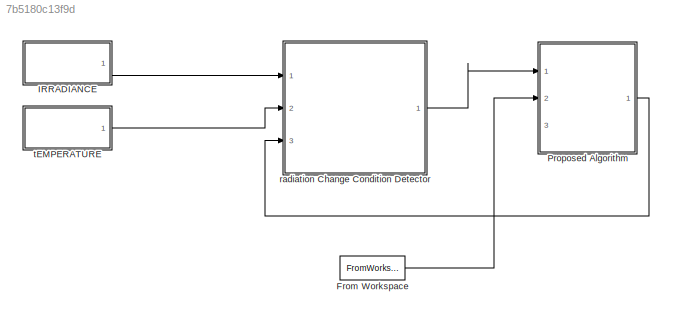
MODEL slx_7b5180c13f9d
KIND model
BLOCK [FromWorkspace] From Workspace
  SampleTime = 0
  VariableName = simin
  ZeroCross = on
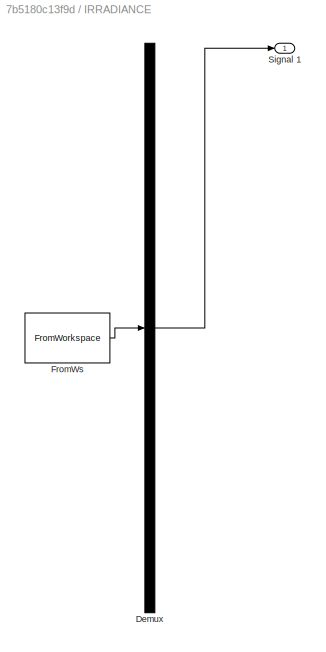
BLOCK [SubSystem] IRRADIANCE
  ClipboardFcn = sigbuilder_block('clipboard');
  CloseFcn = sigbuilder_block('close');
  ContinueFcn = sigbuilder_block('continue');
  CopyFcn = sigbuilder_block('copy');
  DeleteFcn = sigbuilder_block('delete');
  LoadFcn = sigbuilder_block('load');
  MaskHideContents = on
  ModelCloseFcn = sigbuilder_block('modelClose');
  NameChangeFcn = sigbuilder_block('namechange');
  OpenFcn = sigbuilder_block('open',[437.25 183.75 550.5 395.25 ]);
  PauseFcn = sigbuilder_block('pause');
  Ports = [0, 1]
  PreSaveFcn = sigbuilder_block('preSave');
  RequestExecContextInheritance = off
  StartFcn = sigbuilder_block('start');
  StopFcn = sigbuilder_block('stop');
  Tag = STV Subsys
BLOCK [Demux] IRRADIANCE/Demux
  Outputs = 1
  Ports = [1, 1]
  Tag = STV Demux
BLOCK [FromWorkspace] IRRADIANCE/FromWs
  SampleTime = 0
  Tag = STV FromWs
  VariableName = tuvar
  ZeroCross = on
BLOCK [Outport] IRRADIANCE/Signal 1
  IconDisplay = Port number
  Tag = STV Outport
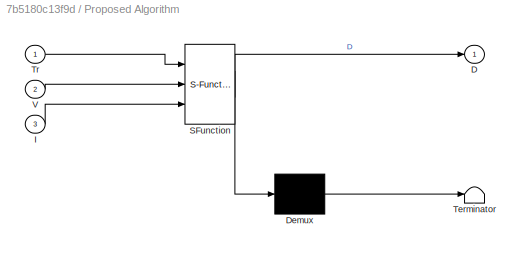
BLOCK [SubSystem] Proposed Algorithm
  ErrorFcn = Stateflow.Translate.translate
  PermitHierarchicalResolution = ExplicitOnly
  Ports = [3, 1]
  RequestExecContextInheritance = off
  SFBlockType = MATLAB Function
  TreatAsAtomicUnit = on
BLOCK [Demux] Proposed Algorithm/ Demux 
  Outputs = 1
  Ports = [1, 1]
BLOCK [S-Function] Proposed Algorithm/ SFunction 
  EnableBusSupport = off
  FunctionName = sf_sfun
  PortCounts = [3 2]
  Ports = [3, 2]
  Tag = Stateflow S-Function Scratch_SIMULATION_01 1
BLOCK [Terminator] Proposed Algorithm/ Terminator 
BLOCK [Outport] Proposed Algorithm/D
  IconDisplay = Port number
BLOCK [Inport] Proposed Algorithm/I
  IconDisplay = Port number
  Port = 3
BLOCK [Inport] Proposed Algorithm/Tr
  IconDisplay = Port number
BLOCK [Inport] Proposed Algorithm/V
  IconDisplay = Port number
  Port = 2
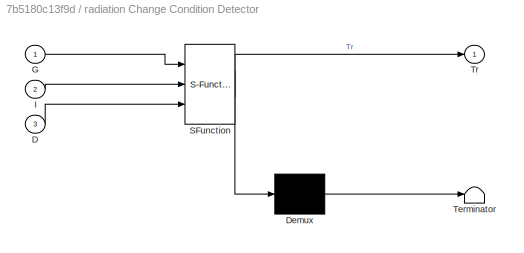
BLOCK [SubSystem] radiation Change Condition Detector
  ErrorFcn = Stateflow.Translate.translate
  PermitHierarchicalResolution = ExplicitOnly
  Ports = [3, 1]
  RequestExecContextInheritance = off
  SFBlockType = MATLAB Function
  TreatAsAtomicUnit = on
BLOCK [Demux] radiation Change Condition Detector/ Demux 
  Outputs = 1
  Ports = [1, 1]
BLOCK [S-Function] radiation Change Condition Detector/ SFunction 
  EnableBusSupport = off
  FunctionName = sf_sfun
  PortCounts = [3 2]
  Ports = [3, 2]
  Tag = Stateflow S-Function Scratch_SIMULATION_01 2
BLOCK [Terminator] radiation Change Condition Detector/ Terminator 
BLOCK [Inport] radiation Change Condition Detector/D
  IconDisplay = Port number
  Port = 3
BLOCK [Inport] radiation Change Condition Detector/G
  IconDisplay = Port number
BLOCK [Inport] radiation Change Condition Detector/I
  IconDisplay = Port number
  Port = 2
BLOCK [Outport] radiation Change Condition Detector/Tr
  IconDisplay = Port number
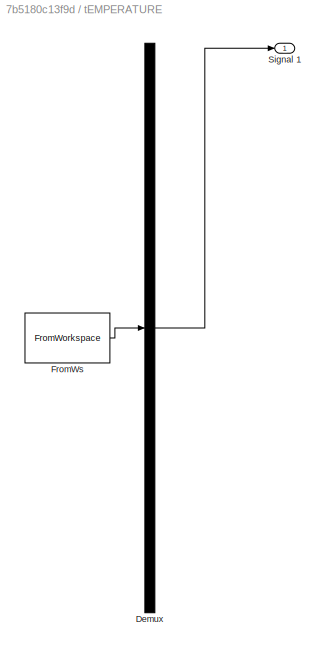
BLOCK [SubSystem] tEMPERATURE
  ClipboardFcn = sigbuilder_block('clipboard');
  CloseFcn = sigbuilder_block('close');
  ContinueFcn = sigbuilder_block('continue');
  CopyFcn = sigbuilder_block('copy');
  DeleteFcn = sigbuilder_block('delete');
  LoadFcn = sigbuilder_block('load');
  MaskHideContents = on
  ModelCloseFcn = sigbuilder_block('modelClose');
  NameChangeFcn = sigbuilder_block('namechange');
  OpenFcn = sigbuilder_block('open',[437.25 183.75 550.5 395.25 ]);
  PauseFcn = sigbuilder_block('pause');
  Ports = [0, 1]
  PreSaveFcn = sigbuilder_block('preSave');
  RequestExecContextInheritance = off
  StartFcn = sigbuilder_block('start');
  StopFcn = sigbuilder_block('stop');
  Tag = STV Subsys
BLOCK [Demux] tEMPERATURE/Demux
  Outputs = 1
  Ports = [1, 1]
  Tag = STV Demux
BLOCK [FromWorkspace] tEMPERATURE/FromWs
  SampleTime = 0
  Tag = STV FromWs
  VariableName = tuvar
  ZeroCross = on
BLOCK [Outport] tEMPERATURE/Signal 1
  IconDisplay = Port number
  Tag = STV Outport
LINE From Workspace:1 -> Proposed Algorithm:2
LINE IRRADIANCE:1 -> radiation Change Condition Detector:1
LINE Proposed Algorithm:1 -> radiation Change Condition Detector:3
LINE radiation Change Condition Detector:1 -> Proposed Algorithm:1
LINE tEMPERATURE:1 -> radiation Change Condition Detector:2
